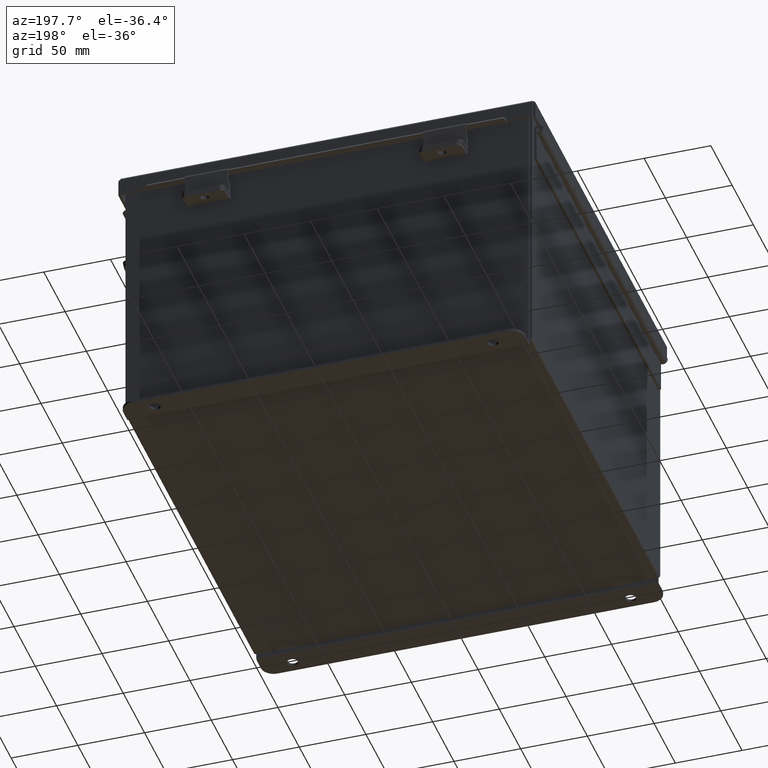
[diagram: clean part render]
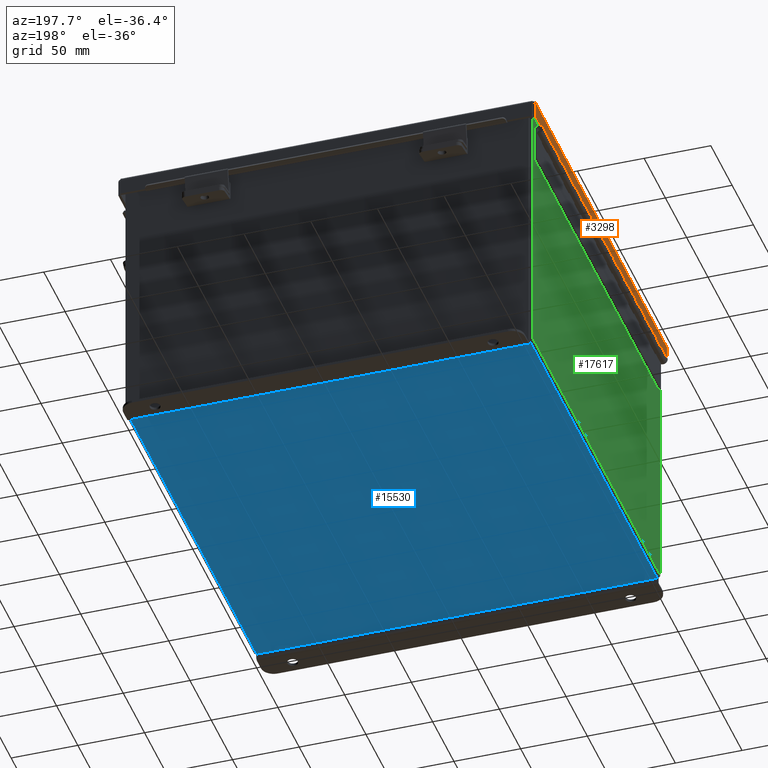
[diagram: same view with three faces highlighted in distinct colors, each labeled with its STEP entity id]
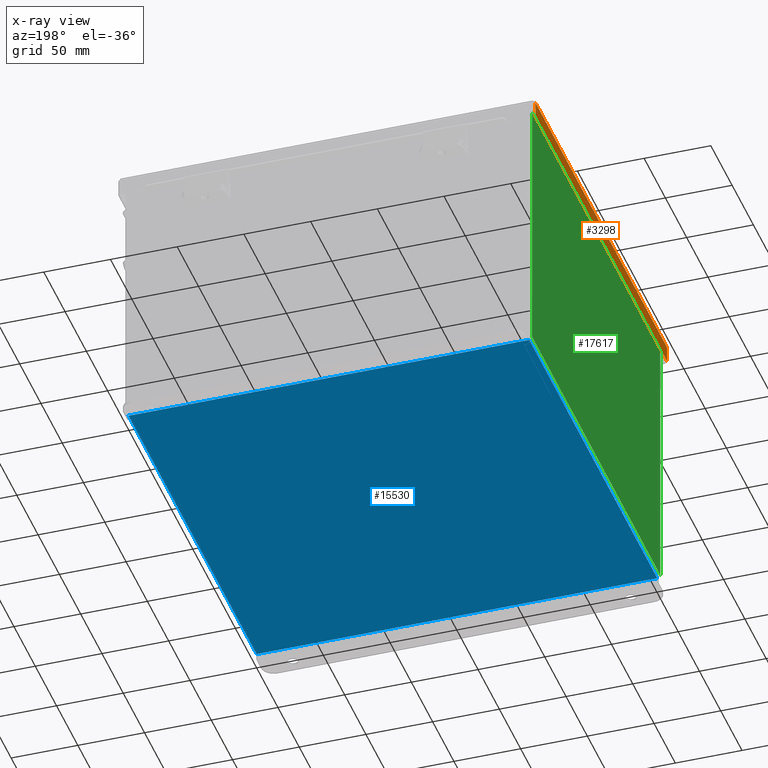
[diagram: x-ray of the same camera — body ghosted, the three highlighted faces saturated]
A machine part, auxiliary view with three faces highlighted in distinct colors.
The next image is the same camera in x-ray (body ghosted, the three faces saturated) — at least one of them is partly hidden behind the body in this view.
Their STEP definitions:

[orange] entity #3298 — the highlighted planar face has unit normal (1, -0, 0).
#264 = EDGE_CURVE ( 'NONE', #635, #10985, #10139, .T. ) ;
#316 = DIRECTION ( 'NONE',  ( -0.0000000000000000000, -1.000000000000000000, -0.0000000000000000000 ) ) ;
#635 = VERTEX_POINT ( 'NONE', #13952 ) ;
#895 = VECTOR ( 'NONE', #17625, 39.37007874015748100 ) ;
#1571 = CARTESIAN_POINT ( 'NONE',  ( 6.156250000000002700, -6.074478932188137400, 0.4872999999999997300 ) ) ;
#2403 = EDGE_CURVE ( 'NONE', #15231, #9380, #8232, .T. ) ;
#2408 = VECTOR ( 'NONE', #6252, 39.37007874015748100 ) ;
#3228 = LINE ( 'NONE', #8592, #15039 ) ;
#3298 = ADVANCED_FACE ( 'NONE', ( #3491 ), #8944, .F. ) ;
#3491 = FACE_OUTER_BOUND ( 'NONE', #4407, .T. ) ;
#4407 = EDGE_LOOP ( 'NONE', ( #15933, #4765, #8148, #16876 ) ) ;
#4597 = EDGE_CURVE ( 'NONE', #15231, #635, #3228, .T. ) ;
#4765 = ORIENTED_EDGE ( 'NONE', *, *, #2403, .T. ) ;
#5038 = VECTOR ( 'NONE', #16963, 39.37007874015748100 ) ;
#5528 = AXIS2_PLACEMENT_3D ( 'NONE', #10089, #8657, #8538 ) ;
#6252 = DIRECTION ( 'NONE',  ( 4.484872552701437800E-015, -0.0000000000000000000, 1.000000000000000000 ) ) ;
#7357 = CARTESIAN_POINT ( 'NONE',  ( 6.156250000000002700, -1.325930851584782900E-017, 0.4872999999999997300 ) ) ;
#7819 = EDGE_CURVE ( 'NONE', #9380, #10985, #8660, .T. ) ;
#8148 = ORIENTED_EDGE ( 'NONE', *, *, #7819, .T. ) ;
#8232 = LINE ( 'NONE', #17552, #895 ) ;
#8538 = DIRECTION ( 'NONE',  ( 4.484872552701437800E-015, 0.0000000000000000000, 1.000000000000000000 ) ) ;
#8592 = CARTESIAN_POINT ( 'NONE',  ( 6.156250000000000000, -6.156249999999998200, 0.01299999999999978100 ) ) ;
#8657 = DIRECTION ( 'NONE',  ( -1.000000000000000000, 0.0000000000000000000, 4.484872552701437800E-015 ) ) ;
#8660 = LINE ( 'NONE', #7357, #5038 ) ;
#8944 = PLANE ( 'NONE',  #5528 ) ;
#9380 = VERTEX_POINT ( 'NONE', #10165 ) ;
#10089 = CARTESIAN_POINT ( 'NONE',  ( 6.156250000000000000, -1.325930851584782900E-017, -2.787081030857980700E-014 ) ) ;
#10139 = LINE ( 'NONE', #11718, #2408 ) ;
#10165 = CARTESIAN_POINT ( 'NONE',  ( 6.156250000000002700, 6.074478932188137400, 0.4872999999999997300 ) ) ;
#10560 = CARTESIAN_POINT ( 'NONE',  ( 6.156250000000000000, 6.074478932188137400, 0.01299999999999978100 ) ) ;
#10985 = VERTEX_POINT ( 'NONE', #1571 ) ;
#11718 = CARTESIAN_POINT ( 'NONE',  ( 6.156250000000000000, -6.074478932188137400, -3.350199796867981300E-016 ) ) ;
#13952 = CARTESIAN_POINT ( 'NONE',  ( 6.156250000000000000, -6.074478932188137400, 0.01299999999999977400 ) ) ;
#15039 = VECTOR ( 'NONE', #316, 39.37007874015748100 ) ;
#15231 = VERTEX_POINT ( 'NONE', #10560 ) ;
#15933 = ORIENTED_EDGE ( 'NONE', *, *, #4597, .F. ) ;
#16876 = ORIENTED_EDGE ( 'NONE', *, *, #264, .F. ) ;
#16963 = DIRECTION ( 'NONE',  ( 0.0000000000000000000, -1.000000000000000000, 0.0000000000000000000 ) ) ;
#17552 = CARTESIAN_POINT ( 'NONE',  ( 6.156250000000000000, 6.074478932188137400, -2.787081030857980700E-014 ) ) ;
#17625 = DIRECTION ( 'NONE',  ( 4.484872552701437800E-015, 0.0000000000000000000, 1.000000000000000000 ) ) ;

[blue] entity #15530 — the highlighted planar face has unit normal (0, 0, -1).
#168 = CARTESIAN_POINT ( 'NONE',  ( -5.999999999999998200, -5.925300000000000000, -0.07470000000000000300 ) ) ;
#962 = FACE_OUTER_BOUND ( 'NONE', #8125, .T. ) ;
#1047 = VERTEX_POINT ( 'NONE', #16171 ) ;
#1310 = DIRECTION ( 'NONE',  ( -1.000000000000000000, -0.0000000000000000000, -0.0000000000000000000 ) ) ;
#1570 = DIRECTION ( 'NONE',  ( -0.0000000000000000000, 1.000000000000000000, -0.0000000000000000000 ) ) ;
#2132 = DIRECTION ( 'NONE',  ( -0.0000000000000000000, -1.000000000000000000, -0.0000000000000000000 ) ) ;
#2137 = LINE ( 'NONE', #16448, #5834 ) ;
#2502 = LINE ( 'NONE', #13117, #9820 ) ;
#3843 = EDGE_CURVE ( 'NONE', #11990, #13268, #6717, .T. ) ;
#3893 = DIRECTION ( 'NONE',  ( 0.0000000000000000000, 0.0000000000000000000, -1.000000000000000000 ) ) ;
#4410 = EDGE_CURVE ( 'NONE', #1047, #16869, #2137, .T. ) ;
#5188 = ORIENTED_EDGE ( 'NONE', *, *, #3843, .F. ) ;
#5388 = CARTESIAN_POINT ( 'NONE',  ( -5.912299999999998300, -5.925299999999999100, -0.07469999999999994700 ) ) ;
#5834 = VECTOR ( 'NONE', #1310, 39.37007874015748100 ) ;
#6287 = VECTOR ( 'NONE', #15266, 39.37007874015748100 ) ;
#6679 = CARTESIAN_POINT ( 'NONE',  ( -5.912299999999998300, 5.925300000000000000, -0.07470000000000000300 ) ) ;
#6717 = LINE ( 'NONE', #168, #6287 ) ;
#7440 = VECTOR ( 'NONE', #1570, 39.37007874015748100 ) ;
#7939 = CARTESIAN_POINT ( 'NONE',  ( 5.912300000000002800, -5.925300000000000000, -0.07470000000000000300 ) ) ;
#8125 = EDGE_LOOP ( 'NONE', ( #12097, #13455, #5188, #12219 ) ) ;
#9313 = PLANE ( 'NONE',  #17681 ) ;
#9816 = CARTESIAN_POINT ( 'NONE',  ( -5.912299999999998300, -5.925300000000000000, -0.07469999999999994700 ) ) ;
#9820 = VECTOR ( 'NONE', #2132, 39.37007874015748100 ) ;
#11080 = LINE ( 'NONE', #9816, #7440 ) ;
#11990 = VERTEX_POINT ( 'NONE', #5388 ) ;
#12061 = CARTESIAN_POINT ( 'NONE',  ( 0.0000000000000000000, 0.0000000000000000000, -0.07470000000000000300 ) ) ;
#12097 = ORIENTED_EDGE ( 'NONE', *, *, #4410, .F. ) ;
#12219 = ORIENTED_EDGE ( 'NONE', *, *, #12902, .T. ) ;
#12519 = EDGE_CURVE ( 'NONE', #1047, #13268, #2502, .T. ) ;
#12902 = EDGE_CURVE ( 'NONE', #11990, #16869, #11080, .T. ) ;
#13117 = CARTESIAN_POINT ( 'NONE',  ( 5.912300000000002800, 5.925300000000000000, -0.07469999999999994700 ) ) ;
#13268 = VERTEX_POINT ( 'NONE', #7939 ) ;
#13447 = DIRECTION ( 'NONE',  ( -1.000000000000000000, 0.0000000000000000000, -0.0000000000000000000 ) ) ;
#13455 = ORIENTED_EDGE ( 'NONE', *, *, #12519, .T. ) ;
#15266 = DIRECTION ( 'NONE',  ( 1.000000000000000000, 0.0000000000000000000, 0.0000000000000000000 ) ) ;
#15530 = ADVANCED_FACE ( 'NONE', ( #962 ), #9313, .T. ) ;
#16171 = CARTESIAN_POINT ( 'NONE',  ( 5.912300000000002800, 5.925299999999997300, -0.07469999999999994700 ) ) ;
#16448 = CARTESIAN_POINT ( 'NONE',  ( -5.999999999999998200, 5.925300000000000000, -0.07470000000000000300 ) ) ;
#16869 = VERTEX_POINT ( 'NONE', #6679 ) ;
#17681 = AXIS2_PLACEMENT_3D ( 'NONE', #12061, #3893, #13447 ) ;

[green] entity #17617 — the highlighted planar face has unit normal (1, 0, 0).
#342 = VECTOR ( 'NONE', #7379, 39.37007874015748100 ) ;
#504 = CARTESIAN_POINT ( 'NONE',  ( -5.999999999999998200, 5.925300000000000000, -2.113767385097723700E-014 ) ) ;
#1512 = DIRECTION ( 'NONE',  ( 3.479795166820705900E-015, 0.0000000000000000000, -1.000000000000000000 ) ) ;
#2836 = CARTESIAN_POINT ( 'NONE',  ( -5.999999999999998200, 0.0000000000000000000, -2.113767385097723700E-014 ) ) ;
#3060 = CARTESIAN_POINT ( 'NONE',  ( -5.999999999999998200, -5.925300000000000000, -1.949002802979847800E-014 ) ) ;
#3456 = CARTESIAN_POINT ( 'NONE',  ( -6.000000000000025800, -5.925299999999998200, 7.837599999999999200 ) ) ;
#4860 = DIRECTION ( 'NONE',  ( 0.0000000000000000000, 1.000000000000000000, 0.0000000000000000000 ) ) ;
#5044 = FACE_OUTER_BOUND ( 'NONE', #6143, .T. ) ;
#6068 = EDGE_CURVE ( 'NONE', #9955, #14048, #7678, .T. ) ;
#6143 = EDGE_LOOP ( 'NONE', ( #10209, #15400, #9767, #9005 ) ) ;
#7193 = CARTESIAN_POINT ( 'NONE',  ( -6.000000000000025800, 5.925300000000000000, 7.837599999999999200 ) ) ;
#7379 = DIRECTION ( 'NONE',  ( -3.479795166820706300E-015, 2.783836133456565100E-016, 1.000000000000000000 ) ) ;
#7571 = LINE ( 'NONE', #3456, #11210 ) ;
#7678 = LINE ( 'NONE', #3060, #342 ) ;
#8156 = EDGE_CURVE ( 'NONE', #14048, #14241, #7571, .T. ) ;
#9005 = ORIENTED_EDGE ( 'NONE', *, *, #6068, .T. ) ;
#9739 = DIRECTION ( 'NONE',  ( 1.000000000000000000, 0.0000000000000000000, 3.479795166820705900E-015 ) ) ;
#9767 = ORIENTED_EDGE ( 'NONE', *, *, #15395, .F. ) ;
#9955 = VERTEX_POINT ( 'NONE', #14647 ) ;
#9979 = VECTOR ( 'NONE', #11510, 39.37007874015748100 ) ;
#10014 = VECTOR ( 'NONE', #17154, 39.37007874015748100 ) ;
#10209 = ORIENTED_EDGE ( 'NONE', *, *, #8156, .T. ) ;
#10320 = AXIS2_PLACEMENT_3D ( 'NONE', #2836, #9739, #1512 ) ;
#11210 = VECTOR ( 'NONE', #4860, 39.37007874015748100 ) ;
#11510 = DIRECTION ( 'NONE',  ( 3.479795166820706300E-015, 0.0000000000000000000, -1.000000000000000000 ) ) ;
#13636 = VERTEX_POINT ( 'NONE', #14218 ) ;
#13656 = EDGE_CURVE ( 'NONE', #14241, #13636, #14052, .T. ) ;
#13660 = LINE ( 'NONE', #17081, #10014 ) ;
#14048 = VERTEX_POINT ( 'NONE', #17846 ) ;
#14052 = LINE ( 'NONE', #504, #9979 ) ;
#14218 = CARTESIAN_POINT ( 'NONE',  ( -5.999999999999998200, 5.925300000000000000, 0.01299999999999984300 ) ) ;
#14241 = VERTEX_POINT ( 'NONE', #7193 ) ;
#14647 = CARTESIAN_POINT ( 'NONE',  ( -5.999999999999998200, -5.925299999999999100, 0.01299999999999984300 ) ) ;
#15199 = PLANE ( 'NONE',  #10320 ) ;
#15395 = EDGE_CURVE ( 'NONE', #9955, #13636, #13660, .T. ) ;
#15400 = ORIENTED_EDGE ( 'NONE', *, *, #13656, .T. ) ;
#17081 = CARTESIAN_POINT ( 'NONE',  ( -5.999999999999998200, 5.925300000000000000, 0.01299999999999984300 ) ) ;
#17154 = DIRECTION ( 'NONE',  ( -0.0000000000000000000, 1.000000000000000000, -0.0000000000000000000 ) ) ;
#17617 = ADVANCED_FACE ( 'NONE', ( #5044 ), #15199, .F. ) ;
#17846 = CARTESIAN_POINT ( 'NONE',  ( -6.000000000000025800, -5.925299999999997300, 7.837599999999999200 ) ) ;